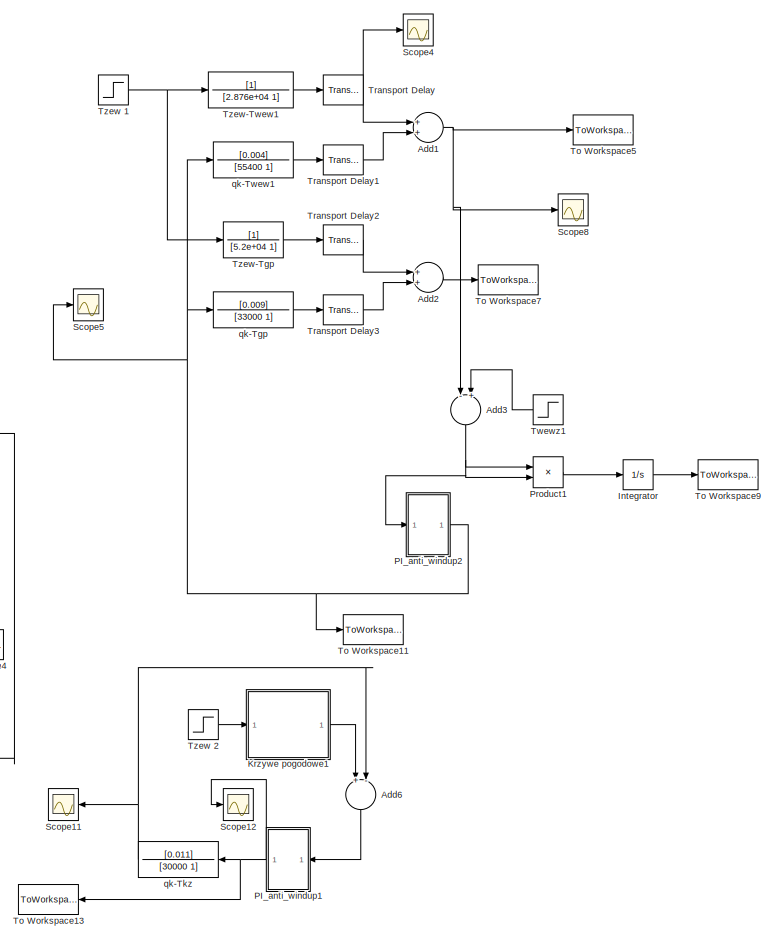
[diagram: root canvas - part 1/2, right side, full height]
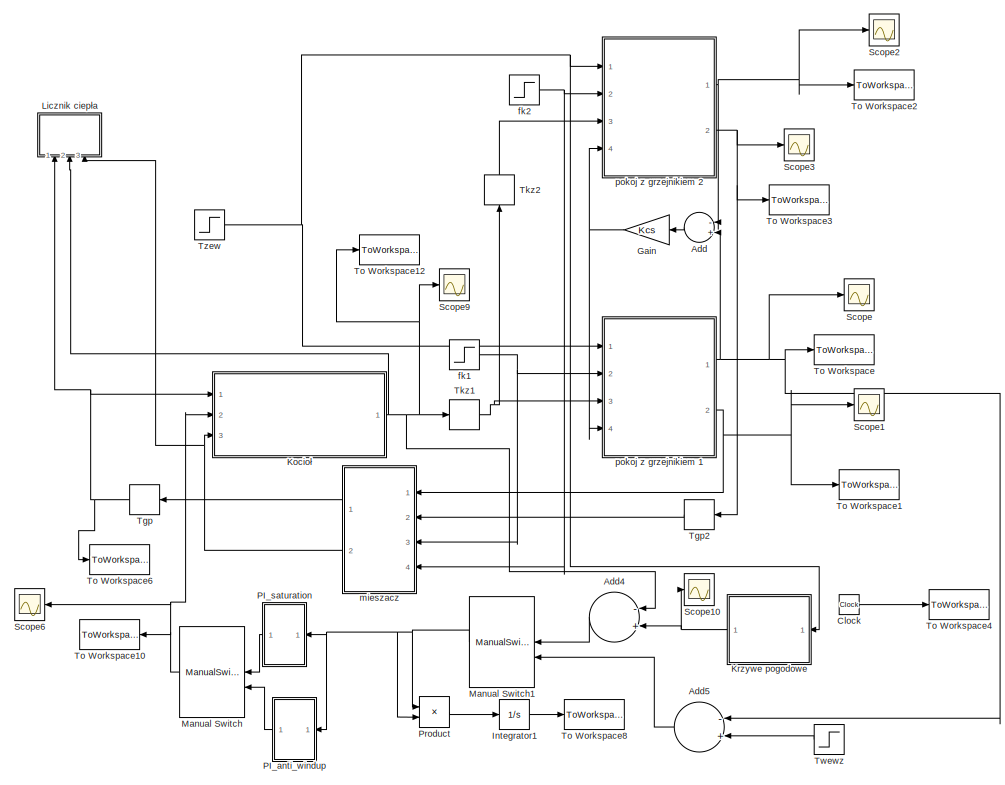
[diagram: root canvas - part 2/2, left side, full height]
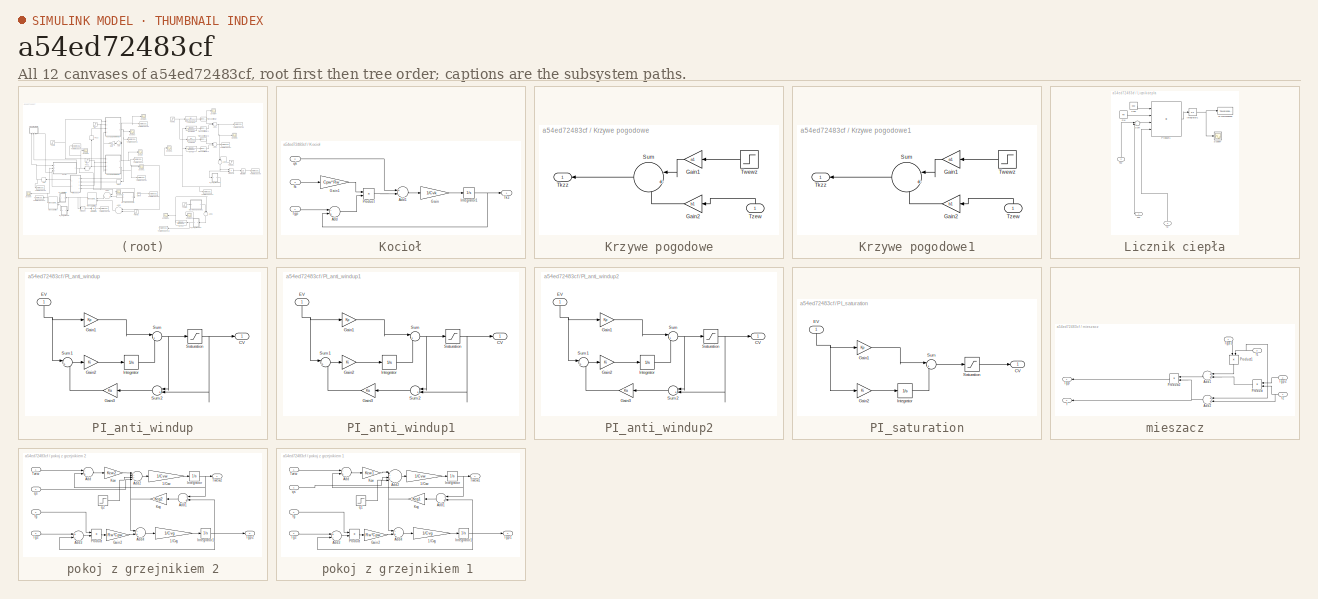
[diagram: thumbnail index - all 12 canvases of the model, root first then tree order]
MODEL slx_a54ed72483cf
KIND model
BLOCK [Sum] Add
  InputSameDT = off
  Inputs = -+
  OutDataTypeStr = Inherit: Inherit via internal rule
  Ports = [2, 1]
  SaturateOnIntegerOverflow = off
BLOCK [Sum] Add1
  InputSameDT = off
  OutDataTypeStr = Inherit: Inherit via internal rule
  Ports = [2, 1]
  SaturateOnIntegerOverflow = off
BLOCK [Sum] Add2
  InputSameDT = off
  OutDataTypeStr = Inherit: Inherit via internal rule
  Ports = [2, 1]
  SaturateOnIntegerOverflow = off
BLOCK [Sum] Add3
  InputSameDT = off
  Inputs = -+
  OutDataTypeStr = Inherit: Inherit via internal rule
  Ports = [2, 1]
  SaturateOnIntegerOverflow = off
BLOCK [Sum] Add4
  InputSameDT = off
  Inputs = -+
  OutDataTypeStr = Inherit: Inherit via internal rule
  Ports = [2, 1]
  SaturateOnIntegerOverflow = off
BLOCK [Sum] Add5
  InputSameDT = off
  Inputs = -+
  OutDataTypeStr = Inherit: Inherit via internal rule
  Ports = [2, 1]
  SaturateOnIntegerOverflow = off
BLOCK [Sum] Add6
  InputSameDT = off
  Inputs = +-
  OutDataTypeStr = Inherit: Inherit via internal rule
  Ports = [2, 1]
  SaturateOnIntegerOverflow = off
BLOCK [Clock] Clock
BLOCK [Gain] Gain
  Gain = Kcs
  OutDataTypeStr = Inherit: Inherit via internal rule
  ParamDataTypeStr = Inherit: Inherit via internal rule
  SaturateOnIntegerOverflow = off
BLOCK [Integrator] Integrator
  Ports = [1, 1]
BLOCK [Integrator] Integrator1
  Ports = [1, 1]
BLOCK [SubSystem] Kocioł
  Ports = [3, 1]
  RequestExecContextInheritance = off
BLOCK [Sum] Kocioł/Add
  InputSameDT = off
  Inputs = -+
  OutDataTypeStr = Inherit: Inherit via internal rule
  Ports = [2, 1]
  SaturateOnIntegerOverflow = off
BLOCK [Sum] Kocioł/Add1
  InputSameDT = off
  Inputs = +-
  OutDataTypeStr = Inherit: Inherit via internal rule
  Ports = [2, 1]
  SaturateOnIntegerOverflow = off
BLOCK [Gain] Kocioł/Gain
  Gain = 1/Cvk
  OutDataTypeStr = Inherit: Inherit via internal rule
  ParamDataTypeStr = Inherit: Inherit via internal rule
  SaturateOnIntegerOverflow = off
BLOCK [Gain] Kocioł/Gain1
  Gain = Cpw*Rw
  OutDataTypeStr = Inherit: Inherit via internal rule
  ParamDataTypeStr = Inherit: Inherit via internal rule
  SaturateOnIntegerOverflow = off
BLOCK [Integrator] Kocioł/Integrator1
  InitialCondition = Tkz0
  Ports = [1, 1]
BLOCK [Product] Kocioł/Product
  InputSameDT = off
  OutDataTypeStr = Inherit: Inherit via internal rule
  Ports = [2, 1]
  RndMeth = Floor
  SaturateOnIntegerOverflow = off
BLOCK [Inport] Kocioł/Tgp
  IconDisplay = Port number
BLOCK [Outport] Kocioł/Tkz
  IconDisplay = Port number
BLOCK [Inport] Kocioł/fk
  IconDisplay = Port number
  Port = 3
BLOCK [Inport] Kocioł/qk
  IconDisplay = Port number
  Port = 2
BLOCK [SubSystem] Krzywe pogodowe
  Ports = [1, 1]
  RequestExecContextInheritance = off
BLOCK [Gain] Krzywe pogodowe/Gain1
  Gain = a1
  OutDataTypeStr = Inherit: Inherit via internal rule
  ParamDataTypeStr = Inherit: Inherit via internal rule
  SaturateOnIntegerOverflow = off
BLOCK [Gain] Krzywe pogodowe/Gain2
  Gain = b1
  OutDataTypeStr = Inherit: Inherit via internal rule
  ParamDataTypeStr = Inherit: Inherit via internal rule
  SaturateOnIntegerOverflow = off
BLOCK [Sum] Krzywe pogodowe/Sum
  IconShape = round
  InputSameDT = off
  Inputs = |++
  OutDataTypeStr = Inherit: Inherit via internal rule
  Ports = [2, 1]
  SaturateOnIntegerOverflow = off
BLOCK [Outport] Krzywe pogodowe/Tkzz 
  IconDisplay = Port number
BLOCK [Step] Krzywe pogodowe/Twewz
  After = Twew10+(dTwew/a1)
  Before = Twew10
  SampleTime = 0
  Time = ts
BLOCK [Inport] Krzywe pogodowe/Tzew
  IconDisplay = Port number
BLOCK [SubSystem] Krzywe pogodowe1
  Ports = [1, 1]
  RequestExecContextInheritance = off
BLOCK [Gain] Krzywe pogodowe1/Gain1
  Gain = a1
  OutDataTypeStr = Inherit: Inherit via internal rule
  ParamDataTypeStr = Inherit: Inherit via internal rule
  SaturateOnIntegerOverflow = off
BLOCK [Gain] Krzywe pogodowe1/Gain2
  Gain = b1
  OutDataTypeStr = Inherit: Inherit via internal rule
  ParamDataTypeStr = Inherit: Inherit via internal rule
  SaturateOnIntegerOverflow = off
BLOCK [Sum] Krzywe pogodowe1/Sum
  IconShape = round
  InputSameDT = off
  Inputs = |++
  OutDataTypeStr = Inherit: Inherit via internal rule
  Ports = [2, 1]
  SaturateOnIntegerOverflow = off
BLOCK [Outport] Krzywe pogodowe1/Tkzz 
  IconDisplay = Port number
BLOCK [Step] Krzywe pogodowe1/Twewz
  After = 0+(dTwew/a1)
  SampleTime = 0
  Time = ts
BLOCK [Inport] Krzywe pogodowe1/Tzew
  IconDisplay = Port number
BLOCK [SubSystem] Licznik ciepła
  Ports = [3]
  RequestExecContextInheritance = off
BLOCK [Constant] Licznik ciepła/Cpw
  Value = Cpw
BLOCK [Integrator] Licznik ciepła/Integrator1
  Ports = [1, 1]
BLOCK [Product] Licznik ciepła/Product1
  InputSameDT = off
  Inputs = 4
  OutDataTypeStr = Inherit: Inherit via internal rule
  Ports = [4, 1]
  RndMeth = Floor
  SaturateOnIntegerOverflow = off
BLOCK [Constant] Licznik ciepła/Rw
  Value = Rw
BLOCK [Scope] Licznik ciepła/Scope7
  DataFormat = StructureWithTime
  Floating = off
  LimitDataPoints = off
  NumInputPorts = 1
  Ports = [1]
  SampleTime = 0
  SaveName = ScopeData9
  ShowLegends = off
  TimeRange = 20000000
  YMax = 21.5
  YMin = 19
BLOCK [Sum] Licznik ciepła/Sum
  IconShape = round
  InputSameDT = off
  Inputs = |+-
  OutDataTypeStr = Inherit: Inherit via internal rule
  Ports = [2, 1]
  SaturateOnIntegerOverflow = off
BLOCK [Inport] Licznik ciepła/Tkp
  IconDisplay = Port number
BLOCK [Inport] Licznik ciepła/Tkz 
  IconDisplay = Port number
  Port = 2
BLOCK [ToWorkspace] Licznik ciepła/To Workspace9
  MaxDataPoints = inf
  Ports = [1]
  SampleTime = -1
  VariableName = Heat
BLOCK [Inport] Licznik ciepła/fg
  IconDisplay = Port number
  Port = 3
BLOCK [ManualSwitch] Manual Switch
  CurrentSetting = 0
BLOCK [ManualSwitch] Manual Switch1
BLOCK [SubSystem] PI_anti_windup
  Ports = [1, 1]
  RequestExecContextInheritance = off
BLOCK [Outport] PI_anti_windup/CV
  IconDisplay = Port number
BLOCK [Inport] PI_anti_windup/EV
  IconDisplay = Port number
BLOCK [Gain] PI_anti_windup/Gain1
  Gain = Kp
  OutDataTypeStr = Inherit: Inherit via internal rule
  ParamDataTypeStr = Inherit: Inherit via internal rule
  SaturateOnIntegerOverflow = off
BLOCK [Gain] PI_anti_windup/Gain2
  Gain = Ki
  OutDataTypeStr = Inherit: Inherit via internal rule
  ParamDataTypeStr = Inherit: Inherit via internal rule
  SaturateOnIntegerOverflow = off
BLOCK [Gain] PI_anti_windup/Gain3
  Gain = Ka
  OutDataTypeStr = Inherit: Inherit via internal rule
  ParamDataTypeStr = Inherit: Inherit via internal rule
  SaturateOnIntegerOverflow = off
BLOCK [Integrator] PI_anti_windup/Integrator
  InitialCondition = WP
  Ports = [1, 1]
BLOCK [Saturate] PI_anti_windup/Saturation
  InputPortMap = u0
  Ports = [1, 1]
  UpperLimit = Lim
BLOCK [Sum] PI_anti_windup/Sum
  IconShape = round
  InputSameDT = off
  Inputs = |++
  OutDataTypeStr = Inherit: Inherit via internal rule
  Ports = [2, 1]
  SaturateOnIntegerOverflow = off
BLOCK [Sum] PI_anti_windup/Sum1
  IconShape = round
  InputSameDT = off
  Inputs = |+-
  OutDataTypeStr = Inherit: Inherit via internal rule
  Ports = [2, 1]
  SaturateOnIntegerOverflow = off
BLOCK [Sum] PI_anti_windup/Sum2
  IconShape = round
  InputSameDT = off
  Inputs = |+-
  OutDataTypeStr = Inherit: Inherit via internal rule
  Ports = [2, 1]
  SaturateOnIntegerOverflow = off
BLOCK [SubSystem] PI_anti_windup1
  Ports = [1, 1]
  RequestExecContextInheritance = off
BLOCK [Outport] PI_anti_windup1/CV
  IconDisplay = Port number
BLOCK [Inport] PI_anti_windup1/EV
  IconDisplay = Port number
BLOCK [Gain] PI_anti_windup1/Gain1
  Gain = Kp
  OutDataTypeStr = Inherit: Inherit via internal rule
  ParamDataTypeStr = Inherit: Inherit via internal rule
  SaturateOnIntegerOverflow = off
BLOCK [Gain] PI_anti_windup1/Gain2
  Gain = Ki
  OutDataTypeStr = Inherit: Inherit via internal rule
  ParamDataTypeStr = Inherit: Inherit via internal rule
  SaturateOnIntegerOverflow = off
BLOCK [Gain] PI_anti_windup1/Gain3
  Gain = Ka
  OutDataTypeStr = Inherit: Inherit via internal rule
  ParamDataTypeStr = Inherit: Inherit via internal rule
  SaturateOnIntegerOverflow = off
BLOCK [Integrator] PI_anti_windup1/Integrator
  InitialCondition = WP
  Ports = [1, 1]
BLOCK [Saturate] PI_anti_windup1/Saturation
  InputPortMap = u0
  Ports = [1, 1]
  UpperLimit = Lim
BLOCK [Sum] PI_anti_windup1/Sum
  IconShape = round
  InputSameDT = off
  Inputs = |++
  OutDataTypeStr = Inherit: Inherit via internal rule
  Ports = [2, 1]
  SaturateOnIntegerOverflow = off
BLOCK [Sum] PI_anti_windup1/Sum1
  IconShape = round
  InputSameDT = off
  Inputs = |+-
  OutDataTypeStr = Inherit: Inherit via internal rule
  Ports = [2, 1]
  SaturateOnIntegerOverflow = off
BLOCK [Sum] PI_anti_windup1/Sum2
  IconShape = round
  InputSameDT = off
  Inputs = |+-
  OutDataTypeStr = Inherit: Inherit via internal rule
  Ports = [2, 1]
  SaturateOnIntegerOverflow = off
BLOCK [SubSystem] PI_anti_windup2
  Ports = [1, 1]
  RequestExecContextInheritance = off
BLOCK [Outport] PI_anti_windup2/CV
  IconDisplay = Port number
BLOCK [Inport] PI_anti_windup2/EV
  IconDisplay = Port number
BLOCK [Gain] PI_anti_windup2/Gain1
  Gain = Kp
  OutDataTypeStr = Inherit: Inherit via internal rule
  ParamDataTypeStr = Inherit: Inherit via internal rule
  SaturateOnIntegerOverflow = off
BLOCK [Gain] PI_anti_windup2/Gain2
  Gain = Ki
  OutDataTypeStr = Inherit: Inherit via internal rule
  ParamDataTypeStr = Inherit: Inherit via internal rule
  SaturateOnIntegerOverflow = off
BLOCK [Gain] PI_anti_windup2/Gain3
  Gain = Ka
  OutDataTypeStr = Inherit: Inherit via internal rule
  ParamDataTypeStr = Inherit: Inherit via internal rule
  SaturateOnIntegerOverflow = off
BLOCK [Integrator] PI_anti_windup2/Integrator
  InitialCondition = WP
  Ports = [1, 1]
BLOCK [Saturate] PI_anti_windup2/Saturation
  InputPortMap = u0
  Ports = [1, 1]
  UpperLimit = Lim
BLOCK [Sum] PI_anti_windup2/Sum
  IconShape = round
  InputSameDT = off
  Inputs = |++
  OutDataTypeStr = Inherit: Inherit via internal rule
  Ports = [2, 1]
  SaturateOnIntegerOverflow = off
BLOCK [Sum] PI_anti_windup2/Sum1
  IconShape = round
  InputSameDT = off
  Inputs = |+-
  OutDataTypeStr = Inherit: Inherit via internal rule
  Ports = [2, 1]
  SaturateOnIntegerOverflow = off
BLOCK [Sum] PI_anti_windup2/Sum2
  IconShape = round
  InputSameDT = off
  Inputs = |+-
  OutDataTypeStr = Inherit: Inherit via internal rule
  Ports = [2, 1]
  SaturateOnIntegerOverflow = off
BLOCK [SubSystem] PI_saturation
  Ports = [1, 1]
  RequestExecContextInheritance = off
BLOCK [Outport] PI_saturation/CV
  IconDisplay = Port number
BLOCK [Inport] PI_saturation/EV
  IconDisplay = Port number
BLOCK [Gain] PI_saturation/Gain1
  Gain = Kp
  OutDataTypeStr = Inherit: Inherit via internal rule
  ParamDataTypeStr = Inherit: Inherit via internal rule
  SaturateOnIntegerOverflow = off
BLOCK [Gain] PI_saturation/Gain2
  Gain = Ki
  OutDataTypeStr = Inherit: Inherit via internal rule
  ParamDataTypeStr = Inherit: Inherit via internal rule
  SaturateOnIntegerOverflow = off
BLOCK [Integrator] PI_saturation/Integrator
  InitialCondition = WP
  Ports = [1, 1]
BLOCK [Saturate] PI_saturation/Saturation
  InputPortMap = u0
  Ports = [1, 1]
  UpperLimit = Lim
BLOCK [Sum] PI_saturation/Sum
  IconShape = round
  InputSameDT = off
  Inputs = |++
  OutDataTypeStr = Inherit: Inherit via internal rule
  Ports = [2, 1]
  SaturateOnIntegerOverflow = off
BLOCK [Product] Product
  InputSameDT = off
  OutDataTypeStr = Inherit: Inherit via internal rule
  Ports = [2, 1]
  RndMeth = Floor
  SaturateOnIntegerOverflow = off
BLOCK [Product] Product1
  InputSameDT = off
  OutDataTypeStr = Inherit: Inherit via internal rule
  Ports = [2, 1]
  RndMeth = Floor
  SaturateOnIntegerOverflow = off
BLOCK [Scope] Scope
  DataFormat = StructureWithTime
  Floating = off
  LimitDataPoints = off
  NumInputPorts = 1
  Ports = [1]
  SampleTime = 0
  ShowLegends = off
  TimeRange = 400000
  YMax = 20
  YMin = 17.5
BLOCK [Scope] Scope1
  DataFormat = StructureWithTime
  Floating = off
  LimitDataPoints = off
  NumInputPorts = 1
  Ports = [1]
  SampleTime = 0
  SaveName = ScopeData1
  ShowLegends = off
BLOCK [Scope] Scope10
  DataFormat = StructureWithTime
  Floating = off
  LimitDataPoints = off
  NumInputPorts = 1
  Ports = [1]
  SampleTime = 0
  SaveName = ScopeData11
  ShowLegends = off
  TimeRange = 400000
  YMax = 20
  YMin = 17.5
BLOCK [Scope] Scope11
  DataFormat = StructureWithTime
  Floating = off
  LimitDataPoints = off
  NumInputPorts = 1
  Ports = [1]
  SampleTime = 0
  SaveName = ScopeData12
  ShowLegends = off
  TimeRange = 400000
  YMax = 4.00075
  YMin = 4.00025
BLOCK [Scope] Scope12
  DataFormat = StructureWithTime
  Floating = off
  LimitDataPoints = off
  NumInputPorts = 1
  Ports = [1]
  SampleTime = 0
  SaveName = ScopeData13
  ShowLegends = off
  TimeRange = 400000
  YMax = 4.00075
  YMin = 4.00025
BLOCK [Scope] Scope2
  DataFormat = StructureWithTime
  Floating = off
  LimitDataPoints = off
  NumInputPorts = 1
  Ports = [1]
  SampleTime = 0
  SaveName = ScopeData2
  ShowLegends = off
  TimeRange = 20000000
  YMax = 21.5
  YMin = 19
BLOCK [Scope] Scope3
  DataFormat = StructureWithTime
  Floating = off
  LimitDataPoints = off
  NumInputPorts = 1
  Ports = [1]
  SampleTime = 0
  SaveName = ScopeData3
  ShowLegends = off
BLOCK [Scope] Scope4
  DataFormat = StructureWithTime
  Floating = off
  LimitDataPoints = off
  NumInputPorts = 1
  Ports = [1]
  SampleTime = 0
  SaveName = ScopeData4
  ShowLegends = off
  TimeRange = 20000000
  YMax = 21.5
  YMin = 19
BLOCK [Scope] Scope5
  DataFormat = StructureWithTime
  Floating = off
  LimitDataPoints = off
  NumInputPorts = 1
  Ports = [1]
  SampleTime = 0
  SaveName = ScopeData5
  ShowLegends = off
  TimeRange = 20000000
  YMax = 21.5
  YMin = 19
BLOCK [Scope] Scope6
  DataFormat = StructureWithTime
  Floating = off
  LimitDataPoints = off
  NumInputPorts = 1
  Ports = [1]
  SampleTime = 0
  SaveName = ScopeData6
  ShowLegends = off
  TimeRange = 20000000
  YMax = 21.5
  YMin = 19
BLOCK [Scope] Scope8
  DataFormat = StructureWithTime
  Floating = off
  LimitDataPoints = off
  NumInputPorts = 1
  Ports = [1]
  SampleTime = 0
  SaveName = ScopeData8
  ShowLegends = off
  TimeRange = 400000
  YMax = 4.00075
  YMin = 4.00025
BLOCK [Scope] Scope9
  DataFormat = StructureWithTime
  Floating = off
  LimitDataPoints = off
  NumInputPorts = 1
  Ports = [1]
  SampleTime = 0
  SaveName = ScopeData10
  ShowLegends = off
  TimeRange = 400000
  YMax = 20
  YMin = 17.5
BLOCK [TransportDelay] Tgp
  DelayTime = 300
  InitialOutput = (Tgp10*fk10+Tgp20*fk20)/(fk10+fk20)
  Ports = [1, 1]
BLOCK [TransportDelay] Tgp2
  DelayTime = 300
  InitialOutput = Tgp20
  Ports = [1, 1]
BLOCK [TransportDelay] Tkz1
  DelayTime = 300
  InitialOutput = Tkz0
  Ports = [1, 1]
BLOCK [TransportDelay] Tkz2
  DelayTime = 300
  InitialOutput = Tkz0
  Ports = [1, 1]
BLOCK [ToWorkspace] To Workspace
  MaxDataPoints = inf
  Ports = [1]
  SampleTime = -1
  VariableName = Twew1
BLOCK [ToWorkspace] To Workspace1
  MaxDataPoints = inf
  Ports = [1]
  SampleTime = -1
  VariableName = Tgp1
BLOCK [ToWorkspace] To Workspace10
  FixptAsFi = on
  MaxDataPoints = inf
  Ports = [1]
  SampleTime = -1
  Save2DSignal = 3-D array (concatenate along third dimension)
  VariableName = qko
BLOCK [ToWorkspace] To Workspace11
  FixptAsFi = on
  MaxDataPoints = inf
  Ports = [1]
  SampleTime = -1
  Save2DSignal = 3-D array (concatenate along third dimension)
  VariableName = qkm
BLOCK [ToWorkspace] To Workspace12
  MaxDataPoints = inf
  Ports = [1]
  SampleTime = -1
  VariableName = Tkz
BLOCK [ToWorkspace] To Workspace13
  FixptAsFi = on
  MaxDataPoints = inf
  Ports = [1]
  SampleTime = -1
  Save2DSignal = 3-D array (concatenate along third dimension)
  VariableName = qkmp
BLOCK [ToWorkspace] To Workspace2
  MaxDataPoints = inf
  Ports = [1]
  SampleTime = -1
  VariableName = Twew2
BLOCK [ToWorkspace] To Workspace3
  MaxDataPoints = inf
  Ports = [1]
  SampleTime = -1
  VariableName = Tgp2
BLOCK [ToWorkspace] To Workspace4
  MaxDataPoints = inf
  Ports = [1]
  SampleTime = -1
  VariableName = t
BLOCK [ToWorkspace] To Workspace5
  FixptAsFi = on
  MaxDataPoints = inf
  Ports = [1]
  SampleTime = -1
  Save2DSignal = 3-D array (concatenate along third dimension)
  VariableName = Twewm
BLOCK [ToWorkspace] To Workspace6
  MaxDataPoints = inf
  Ports = [1]
  SampleTime = -1
  VariableName = Tgp
BLOCK [ToWorkspace] To Workspace7
  FixptAsFi = on
  MaxDataPoints = inf
  Ports = [1]
  SampleTime = -1
  Save2DSignal = 3-D array (concatenate along third dimension)
  VariableName = Tgpm
BLOCK [ToWorkspace] To Workspace8
  FixptAsFi = on
  MaxDataPoints = inf
  Ports = [1]
  SampleTime = -1
  Save2DSignal = 3-D array (concatenate along third dimension)
  VariableName = ISE
BLOCK [ToWorkspace] To Workspace9
  FixptAsFi = on
  MaxDataPoints = inf
  Ports = [1]
  SampleTime = -1
  Save2DSignal = 3-D array (concatenate along third dimension)
  VariableName = ISEm
BLOCK [TransportDelay] Transport Delay
  DelayTime = 0
  Ports = [1, 1]
BLOCK [TransportDelay] Transport Delay1
  DelayTime = 3800
  Ports = [1, 1]
BLOCK [TransportDelay] Transport Delay2
  DelayTime = 3400
  Ports = [1, 1]
BLOCK [TransportDelay] Transport Delay3
  DelayTime = 1000
  Ports = [1, 1]
BLOCK [Step] Twewz
  After = Twew10+dTwew
  Before = Twew10
  SampleTime = 0
  Time = ts
BLOCK [Step] Twewz1
  After = dTwew
  SampleTime = 0
  Time = ts
BLOCK [Step] Tzew 
  After = Tzew0+dTzew
  Before = Tzew0
  SampleTime = 0
  Time = ts
BLOCK [Step] Tzew 1
  After = 0+dTzew
  SampleTime = 0
  Time = ts
BLOCK [Step] Tzew 2
  After = 0+dTzew
  SampleTime = 0
  Time = ts
BLOCK [TransferFcn] Tzew-Tgp
  Denominator = [5.2e+04 1]
BLOCK [TransferFcn] Tzew-Twew1
  Denominator = [2.876e+04 1]
BLOCK [Step] fk1
  After = fk10+dfk1
  Before = fk10
  SampleTime = 0
  Time = ts
BLOCK [Step] fk2
  After = fk20+dfk2
  Before = fk20
  SampleTime = 0
  Time = ts
BLOCK [SubSystem] mieszacz
  Ports = [4, 2]
  RequestExecContextInheritance = off
BLOCK [Sum] mieszacz/Add1
  InputSameDT = off
  OutDataTypeStr = Inherit: Inherit via internal rule
  Ports = [2, 1]
  SaturateOnIntegerOverflow = off
BLOCK [Sum] mieszacz/Add2
  InputSameDT = off
  OutDataTypeStr = Inherit: Inherit via internal rule
  Ports = [2, 1]
  SaturateOnIntegerOverflow = off
BLOCK [Product] mieszacz/Product
  InputSameDT = off
  OutDataTypeStr = Inherit: Inherit via internal rule
  Ports = [2, 1]
  RndMeth = Floor
  SaturateOnIntegerOverflow = off
BLOCK [Product] mieszacz/Product1
  InputSameDT = off
  OutDataTypeStr = Inherit: Inherit via internal rule
  Ports = [2, 1]
  RndMeth = Floor
  SaturateOnIntegerOverflow = off
BLOCK [Product] mieszacz/Product2
  InputSameDT = off
  Inputs = */
  OutDataTypeStr = Inherit: Inherit via internal rule
  Ports = [2, 1]
  RndMeth = Floor
  SaturateOnIntegerOverflow = off
BLOCK [Outport] mieszacz/Tgp
  IconDisplay = Port number
BLOCK [Inport] mieszacz/Tgp1
  IconDisplay = Port number
BLOCK [Inport] mieszacz/Tgp2
  IconDisplay = Port number
  Port = 2
BLOCK [Outport] mieszacz/f
  IconDisplay = Port number
  Port = 2
BLOCK [Inport] mieszacz/f1
  IconDisplay = Port number
  Port = 3
BLOCK [Inport] mieszacz/f2
  IconDisplay = Port number
  Port = 4
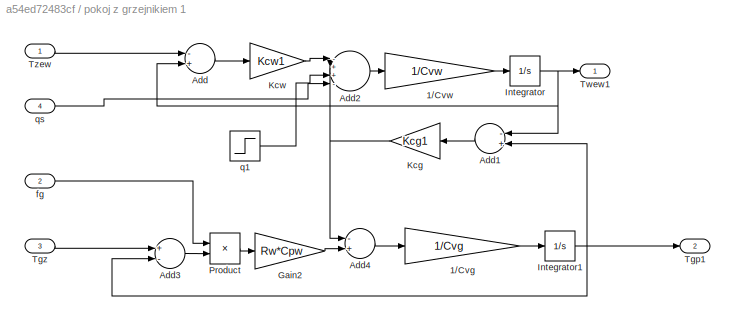
BLOCK [SubSystem] pokoj z grzejnikiem 1 
  Ports = [4, 2]
  RequestExecContextInheritance = off
BLOCK [Gain] pokoj z grzejnikiem 1 /1//Cvg
  Gain = 1/Cvg
  OutDataTypeStr = Inherit: Inherit via internal rule
  ParamDataTypeStr = Inherit: Inherit via internal rule
  SaturateOnIntegerOverflow = off
BLOCK [Gain] pokoj z grzejnikiem 1 /1//Cvw
  Gain = 1/Cvw
  OutDataTypeStr = Inherit: Inherit via internal rule
  ParamDataTypeStr = Inherit: Inherit via internal rule
  SaturateOnIntegerOverflow = off
BLOCK [Sum] pokoj z grzejnikiem 1 /Add
  InputSameDT = off
  Inputs = -+
  OutDataTypeStr = Inherit: Inherit via internal rule
  Ports = [2, 1]
  SaturateOnIntegerOverflow = off
BLOCK [Sum] pokoj z grzejnikiem 1 /Add1
  InputSameDT = off
  Inputs = -+
  OutDataTypeStr = Inherit: Inherit via internal rule
  Ports = [2, 1]
  SaturateOnIntegerOverflow = off
BLOCK [Sum] pokoj z grzejnikiem 1 /Add2
  InputSameDT = off
  Inputs = -++-
  OutDataTypeStr = Inherit: Inherit via internal rule
  Ports = [4, 1]
  SaturateOnIntegerOverflow = off
BLOCK [Sum] pokoj z grzejnikiem 1 /Add3
  InputSameDT = off
  Inputs = +-
  OutDataTypeStr = Inherit: Inherit via internal rule
  Ports = [2, 1]
  SaturateOnIntegerOverflow = off
BLOCK [Sum] pokoj z grzejnikiem 1 /Add4
  InputSameDT = off
  Inputs = -+
  OutDataTypeStr = Inherit: Inherit via internal rule
  Ports = [2, 1]
  SaturateOnIntegerOverflow = off
BLOCK [Gain] pokoj z grzejnikiem 1 /Gain2
  Gain = Rw*Cpw
  OutDataTypeStr = Inherit: Inherit via internal rule
  ParamDataTypeStr = Inherit: Inherit via internal rule
  SaturateOnIntegerOverflow = off
BLOCK [Integrator] pokoj z grzejnikiem 1 /Integrator
  InitialCondition = Twew10
  Ports = [1, 1]
BLOCK [Integrator] pokoj z grzejnikiem 1 /Integrator1
  InitialCondition = Tgp10
  Ports = [1, 1]
BLOCK [Gain] pokoj z grzejnikiem 1 /Kcg 
  Gain = Kcg1
  OutDataTypeStr = Inherit: Inherit via internal rule
  ParamDataTypeStr = Inherit: Inherit via internal rule
  SaturateOnIntegerOverflow = off
BLOCK [Gain] pokoj z grzejnikiem 1 /Kcw
  Gain = Kcw1
  OutDataTypeStr = Inherit: Inherit via internal rule
  ParamDataTypeStr = Inherit: Inherit via internal rule
  SaturateOnIntegerOverflow = off
BLOCK [Product] pokoj z grzejnikiem 1 /Product
  InputSameDT = off
  OutDataTypeStr = Inherit: Inherit via internal rule
  Ports = [2, 1]
  RndMeth = Floor
  SaturateOnIntegerOverflow = off
BLOCK [Outport] pokoj z grzejnikiem 1 /Tgp1
  IconDisplay = Port number
  Port = 2
BLOCK [Inport] pokoj z grzejnikiem 1 /Tgz
  IconDisplay = Port number
  Port = 3
BLOCK [Outport] pokoj z grzejnikiem 1 /Twew1
  IconDisplay = Port number
BLOCK [Inport] pokoj z grzejnikiem 1 /Tzew
  IconDisplay = Port number
BLOCK [Inport] pokoj z grzejnikiem 1 /fg
  IconDisplay = Port number
  Port = 2
BLOCK [Step] pokoj z grzejnikiem 1 /q1
  After = q1
  SampleTime = 0
  Time = ts
BLOCK [Inport] pokoj z grzejnikiem 1 /qs
  IconDisplay = Port number
  Port = 4
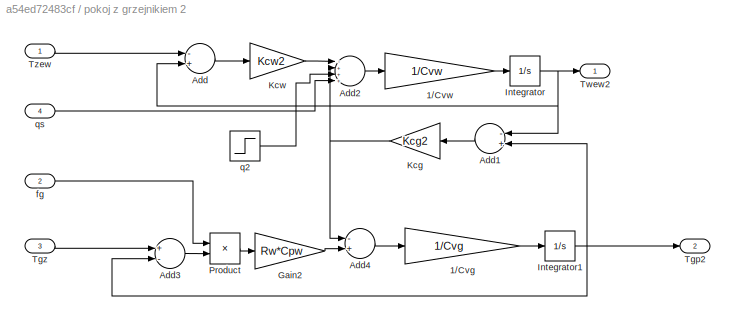
BLOCK [SubSystem] pokoj z grzejnikiem 2
  Ports = [4, 2]
  RequestExecContextInheritance = off
BLOCK [Gain] pokoj z grzejnikiem 2/1//Cvg
  Gain = 1/Cvg
  OutDataTypeStr = Inherit: Inherit via internal rule
  ParamDataTypeStr = Inherit: Inherit via internal rule
  SaturateOnIntegerOverflow = off
BLOCK [Gain] pokoj z grzejnikiem 2/1//Cvw
  Gain = 1/Cvw
  OutDataTypeStr = Inherit: Inherit via internal rule
  ParamDataTypeStr = Inherit: Inherit via internal rule
  SaturateOnIntegerOverflow = off
BLOCK [Sum] pokoj z grzejnikiem 2/Add
  InputSameDT = off
  Inputs = -+
  OutDataTypeStr = Inherit: Inherit via internal rule
  Ports = [2, 1]
  SaturateOnIntegerOverflow = off
BLOCK [Sum] pokoj z grzejnikiem 2/Add1
  InputSameDT = off
  Inputs = -+
  OutDataTypeStr = Inherit: Inherit via internal rule
  Ports = [2, 1]
  SaturateOnIntegerOverflow = off
BLOCK [Sum] pokoj z grzejnikiem 2/Add2
  InputSameDT = off
  Inputs = -+++
  OutDataTypeStr = Inherit: Inherit via internal rule
  Ports = [4, 1]
  SaturateOnIntegerOverflow = off
BLOCK [Sum] pokoj z grzejnikiem 2/Add3
  InputSameDT = off
  Inputs = +-
  OutDataTypeStr = Inherit: Inherit via internal rule
  Ports = [2, 1]
  SaturateOnIntegerOverflow = off
BLOCK [Sum] pokoj z grzejnikiem 2/Add4
  InputSameDT = off
  Inputs = -+
  OutDataTypeStr = Inherit: Inherit via internal rule
  Ports = [2, 1]
  SaturateOnIntegerOverflow = off
BLOCK [Gain] pokoj z grzejnikiem 2/Gain2
  Gain = Rw*Cpw
  OutDataTypeStr = Inherit: Inherit via internal rule
  ParamDataTypeStr = Inherit: Inherit via internal rule
  SaturateOnIntegerOverflow = off
BLOCK [Integrator] pokoj z grzejnikiem 2/Integrator
  InitialCondition = Twew20
  Ports = [1, 1]
BLOCK [Integrator] pokoj z grzejnikiem 2/Integrator1
  InitialCondition = Tgp20
  Ports = [1, 1]
BLOCK [Gain] pokoj z grzejnikiem 2/Kcg 
  Gain = Kcg2
  OutDataTypeStr = Inherit: Inherit via internal rule
  ParamDataTypeStr = Inherit: Inherit via internal rule
  SaturateOnIntegerOverflow = off
BLOCK [Gain] pokoj z grzejnikiem 2/Kcw
  Gain = Kcw2
  OutDataTypeStr = Inherit: Inherit via internal rule
  ParamDataTypeStr = Inherit: Inherit via internal rule
  SaturateOnIntegerOverflow = off
BLOCK [Product] pokoj z grzejnikiem 2/Product
  InputSameDT = off
  OutDataTypeStr = Inherit: Inherit via internal rule
  Ports = [2, 1]
  RndMeth = Floor
  SaturateOnIntegerOverflow = off
BLOCK [Outport] pokoj z grzejnikiem 2/Tgp2
  IconDisplay = Port number
  Port = 2
BLOCK [Inport] pokoj z grzejnikiem 2/Tgz
  IconDisplay = Port number
  Port = 3
BLOCK [Outport] pokoj z grzejnikiem 2/Twew2
  IconDisplay = Port number
BLOCK [Inport] pokoj z grzejnikiem 2/Tzew
  IconDisplay = Port number
BLOCK [Inport] pokoj z grzejnikiem 2/fg
  IconDisplay = Port number
  Port = 2
BLOCK [Step] pokoj z grzejnikiem 2/q2
  After = q2
  SampleTime = 0
  Time = ts
BLOCK [Inport] pokoj z grzejnikiem 2/qs
  IconDisplay = Port number
  Port = 4
BLOCK [TransferFcn] qk-Tgp
  Denominator = [33000 1]
  Numerator = [0.009]
BLOCK [TransferFcn] qk-Tkz
  Denominator = [30000 1]
  Numerator = [0.011]
BLOCK [TransferFcn] qk-Twew1
  Denominator = [55400 1]
  Numerator = [0.004]
NET Add1:1 -> Add3:1, Scope8:1, To Workspace5:1
LINE Add2:1 -> To Workspace7:1
NET Add3:1 -> PI_anti_windup2:1, Product1:1, Product1:2
LINE Add4:1 -> Manual Switch1:1
LINE Add5:1 -> Manual Switch1:2
LINE Add6:1 -> PI_anti_windup1:1
LINE Add:1 -> Gain:1
LINE Clock:1 -> To Workspace4:1
NET Gain:1 -> pokoj z grzejnikiem 1 :4, pokoj z grzejnikiem 2:4
LINE Integrator1:1 -> To Workspace8:1
LINE Integrator:1 -> To Workspace9:1
LINE Kocioł/Add1:1 -> Kocioł/Gain:1
LINE Kocioł/Add:1 -> Kocioł/Product:2
LINE Kocioł/Gain1:1 -> Kocioł/Product:1
LINE Kocioł/Gain:1 -> Kocioł/Integrator1:1
NET Kocioł/Integrator1:1 -> Kocioł/Add:2, Kocioł/Tkz:1
LINE Kocioł/Product:1 -> Kocioł/Add1:2
LINE Kocioł/Tgp:1 -> Kocioł/Add:1
LINE Kocioł/fk:1 -> Kocioł/Gain1:1
LINE Kocioł/qk:1 -> Kocioł/Add1:1
NET Kocioł:1 -> Add4:1, Licznik ciepła:2, Scope9:1, Tkz1:1, To Workspace12:1
LINE Krzywe pogodowe/Gain1:1 -> Krzywe pogodowe/Sum:1
LINE Krzywe pogodowe/Gain2:1 -> Krzywe pogodowe/Sum:2
LINE Krzywe pogodowe/Sum:1 -> Krzywe pogodowe/Tkzz :1
LINE Krzywe pogodowe/Twewz:1 -> Krzywe pogodowe/Gain1:1
LINE Krzywe pogodowe/Tzew:1 -> Krzywe pogodowe/Gain2:1
LINE Krzywe pogodowe1/Gain1:1 -> Krzywe pogodowe1/Sum:1
LINE Krzywe pogodowe1/Gain2:1 -> Krzywe pogodowe1/Sum:2
LINE Krzywe pogodowe1/Sum:1 -> Krzywe pogodowe1/Tkzz :1
LINE Krzywe pogodowe1/Twewz:1 -> Krzywe pogodowe1/Gain1:1
LINE Krzywe pogodowe1/Tzew:1 -> Krzywe pogodowe1/Gain2:1
LINE Krzywe pogodowe1:1 -> Add6:1
NET Krzywe pogodowe:1 -> Add4:2, Scope10:1
LINE Licznik ciepła/Cpw:1 -> Licznik ciepła/Product1:1
NET Licznik ciepła/Integrator1:1 -> Licznik ciepła/Scope7:1, Licznik ciepła/To Workspace9:1
LINE Licznik ciepła/Product1:1 -> Licznik ciepła/Integrator1:1
LINE Licznik ciepła/Rw:1 -> Licznik ciepła/Product1:2
LINE Licznik ciepła/Sum:1 -> Licznik ciepła/Product1:3
LINE Licznik ciepła/Tkp:1 -> Licznik ciepła/Sum:2
LINE Licznik ciepła/Tkz :1 -> Licznik ciepła/Sum:1
LINE Licznik ciepła/fg:1 -> Licznik ciepła/Product1:4
NET Manual Switch1:1 -> PI_anti_windup:1, PI_saturation:1, Product:1, Product:2
NET Manual Switch:1 -> Kocioł:2, Scope6:1, To Workspace10:1
NET PI_anti_windup/EV:1 -> PI_anti_windup/Gain1:1, PI_anti_windup/Sum1:1
LINE PI_anti_windup/Gain1:1 -> PI_anti_windup/Sum:1
LINE PI_anti_windup/Gain2:1 -> PI_anti_windup/Integrator:1
LINE PI_anti_windup/Gain3:1 -> PI_anti_windup/Sum1:2
LINE PI_anti_windup/Integrator:1 -> PI_anti_windup/Sum:2
NET PI_anti_windup/Saturation:1 -> PI_anti_windup/CV:1, PI_anti_windup/Sum2:2
LINE PI_anti_windup/Sum1:1 -> PI_anti_windup/Gain2:1
LINE PI_anti_windup/Sum2:1 -> PI_anti_windup/Gain3:1
NET PI_anti_windup/Sum:1 -> PI_anti_windup/Saturation:1, PI_anti_windup/Sum2:1
NET PI_anti_windup1/EV:1 -> PI_anti_windup1/Gain1:1, PI_anti_windup1/Sum1:1
LINE PI_anti_windup1/Gain1:1 -> PI_anti_windup1/Sum:1
LINE PI_anti_windup1/Gain2:1 -> PI_anti_windup1/Integrator:1
LINE PI_anti_windup1/Gain3:1 -> PI_anti_windup1/Sum1:2
LINE PI_anti_windup1/Integrator:1 -> PI_anti_windup1/Sum:2
NET PI_anti_windup1/Saturation:1 -> PI_anti_windup1/CV:1, PI_anti_windup1/Sum2:2
LINE PI_anti_windup1/Sum1:1 -> PI_anti_windup1/Gain2:1
LINE PI_anti_windup1/Sum2:1 -> PI_anti_windup1/Gain3:1
NET PI_anti_windup1/Sum:1 -> PI_anti_windup1/Saturation:1, PI_anti_windup1/Sum2:1
NET PI_anti_windup1:1 -> Scope12:1, To Workspace13:1, qk-Tkz:1
NET PI_anti_windup2/EV:1 -> PI_anti_windup2/Gain1:1, PI_anti_windup2/Sum1:1
LINE PI_anti_windup2/Gain1:1 -> PI_anti_windup2/Sum:1
LINE PI_anti_windup2/Gain2:1 -> PI_anti_windup2/Integrator:1
LINE PI_anti_windup2/Gain3:1 -> PI_anti_windup2/Sum1:2
LINE PI_anti_windup2/Integrator:1 -> PI_anti_windup2/Sum:2
NET PI_anti_windup2/Saturation:1 -> PI_anti_windup2/CV:1, PI_anti_windup2/Sum2:2
LINE PI_anti_windup2/Sum1:1 -> PI_anti_windup2/Gain2:1
LINE PI_anti_windup2/Sum2:1 -> PI_anti_windup2/Gain3:1
NET PI_anti_windup2/Sum:1 -> PI_anti_windup2/Saturation:1, PI_anti_windup2/Sum2:1
NET PI_anti_windup2:1 -> Scope5:1, To Workspace11:1, qk-Tgp:1, qk-Twew1:1
LINE PI_anti_windup:1 -> Manual Switch:2
NET PI_saturation/EV:1 -> PI_saturation/Gain1:1, PI_saturation/Gain2:1
LINE PI_saturation/Gain1:1 -> PI_saturation/Sum:1
LINE PI_saturation/Gain2:1 -> PI_saturation/Integrator:1
LINE PI_saturation/Integrator:1 -> PI_saturation/Sum:2
LINE PI_saturation/Saturation:1 -> PI_saturation/CV:1
LINE PI_saturation/Sum:1 -> PI_saturation/Saturation:1
LINE PI_saturation:1 -> Manual Switch:1
LINE Product1:1 -> Integrator:1
LINE Product:1 -> Integrator1:1
LINE Tgp2:1 -> mieszacz:2
NET Tgp:1 -> Kocioł:1, Licznik ciepła:1, To Workspace6:1
NET Tkz1:1 -> Tkz2:1, pokoj z grzejnikiem 1 :3
LINE Tkz2:1 -> pokoj z grzejnikiem 2:3
LINE Transport Delay1:1 -> Add1:2
LINE Transport Delay2:1 -> Add2:1
LINE Transport Delay3:1 -> Add2:2
NET Transport Delay:1 -> Add1:1, Scope4:1
LINE Twewz1:1 -> Add3:2
LINE Twewz:1 -> Add5:2
NET Tzew 1:1 -> Tzew-Tgp:1, Tzew-Twew1:1
LINE Tzew 2:1 -> Krzywe pogodowe1:1
NET Tzew :1 -> Krzywe pogodowe:1, pokoj z grzejnikiem 1 :1, pokoj z grzejnikiem 2:1
LINE Tzew-Tgp:1 -> Transport Delay2:1
LINE Tzew-Twew1:1 -> Transport Delay:1
NET fk1:1 -> mieszacz:3, pokoj z grzejnikiem 1 :2
NET fk2:1 -> mieszacz:4, pokoj z grzejnikiem 2:2
LINE mieszacz/Add1:1 -> mieszacz/Product2:1
NET mieszacz/Add2:1 -> mieszacz/Product2:2, mieszacz/f:1
LINE mieszacz/Product1:1 -> mieszacz/Add1:1
LINE mieszacz/Product2:1 -> mieszacz/Tgp:1
LINE mieszacz/Product:1 -> mieszacz/Add1:2
LINE mieszacz/Tgp1:1 -> mieszacz/Product1:1
LINE mieszacz/Tgp2:1 -> mieszacz/Product:1
NET mieszacz/f1:1 -> mieszacz/Add2:1, mieszacz/Product1:2
NET mieszacz/f2:1 -> mieszacz/Add2:2, mieszacz/Product:2
LINE mieszacz:1 -> Tgp:1
NET mieszacz:2 -> Kocioł:3, Licznik ciepła:3
LINE pokoj z grzejnikiem 1 /1//Cvg:1 -> pokoj z grzejnikiem 1 /Integrator1:1
LINE pokoj z grzejnikiem 1 /1//Cvw:1 -> pokoj z grzejnikiem 1 /Integrator:1
LINE pokoj z grzejnikiem 1 /Add1:1 -> pokoj z grzejnikiem 1 /Kcg :1
LINE pokoj z grzejnikiem 1 /Add2:1 -> pokoj z grzejnikiem 1 /1//Cvw:1
LINE pokoj z grzejnikiem 1 /Add3:1 -> pokoj z grzejnikiem 1 /Product:2
LINE pokoj z grzejnikiem 1 /Add4:1 -> pokoj z grzejnikiem 1 /1//Cvg:1
LINE pokoj z grzejnikiem 1 /Add:1 -> pokoj z grzejnikiem 1 /Kcw:1
LINE pokoj z grzejnikiem 1 /Gain2:1 -> pokoj z grzejnikiem 1 /Add4:2
NET pokoj z grzejnikiem 1 /Integrator1:1 -> pokoj z grzejnikiem 1 /Add1:2, pokoj z grzejnikiem 1 /Add3:2, pokoj z grzejnikiem 1 /Tgp1:1
NET pokoj z grzejnikiem 1 /Integrator:1 -> pokoj z grzejnikiem 1 /Add1:1, pokoj z grzejnikiem 1 /Add:2, pokoj z grzejnikiem 1 /Twew1:1
NET pokoj z grzejnikiem 1 /Kcg :1 -> pokoj z grzejnikiem 1 /Add2:2, pokoj z grzejnikiem 1 /Add4:1
LINE pokoj z grzejnikiem 1 /Kcw:1 -> pokoj z grzejnikiem 1 /Add2:1
LINE pokoj z grzejnikiem 1 /Product:1 -> pokoj z grzejnikiem 1 /Gain2:1
LINE pokoj z grzejnikiem 1 /Tgz:1 -> pokoj z grzejnikiem 1 /Add3:1
LINE pokoj z grzejnikiem 1 /Tzew:1 -> pokoj z grzejnikiem 1 /Add:1
LINE pokoj z grzejnikiem 1 /fg:1 -> pokoj z grzejnikiem 1 /Product:1
LINE pokoj z grzejnikiem 1 /q1:1 -> pokoj z grzejnikiem 1 /Add2:3
LINE pokoj z grzejnikiem 1 /qs:1 -> pokoj z grzejnikiem 1 /Add2:4
NET pokoj z grzejnikiem 1 :1 -> Add5:1, Add:2, Scope:1, To Workspace:1
NET pokoj z grzejnikiem 1 :2 -> Scope1:1, To Workspace1:1, mieszacz:1
LINE pokoj z grzejnikiem 2/1//Cvg:1 -> pokoj z grzejnikiem 2/Integrator1:1
LINE pokoj z grzejnikiem 2/1//Cvw:1 -> pokoj z grzejnikiem 2/Integrator:1
LINE pokoj z grzejnikiem 2/Add1:1 -> pokoj z grzejnikiem 2/Kcg :1
LINE pokoj z grzejnikiem 2/Add2:1 -> pokoj z grzejnikiem 2/1//Cvw:1
LINE pokoj z grzejnikiem 2/Add3:1 -> pokoj z grzejnikiem 2/Product:2
LINE pokoj z grzejnikiem 2/Add4:1 -> pokoj z grzejnikiem 2/1//Cvg:1
LINE pokoj z grzejnikiem 2/Add:1 -> pokoj z grzejnikiem 2/Kcw:1
LINE pokoj z grzejnikiem 2/Gain2:1 -> pokoj z grzejnikiem 2/Add4:2
NET pokoj z grzejnikiem 2/Integrator1:1 -> pokoj z grzejnikiem 2/Add1:2, pokoj z grzejnikiem 2/Add3:2, pokoj z grzejnikiem 2/Tgp2:1
NET pokoj z grzejnikiem 2/Integrator:1 -> pokoj z grzejnikiem 2/Add1:1, pokoj z grzejnikiem 2/Add:2, pokoj z grzejnikiem 2/Twew2:1
NET pokoj z grzejnikiem 2/Kcg :1 -> pokoj z grzejnikiem 2/Add2:2, pokoj z grzejnikiem 2/Add4:1
LINE pokoj z grzejnikiem 2/Kcw:1 -> pokoj z grzejnikiem 2/Add2:1
LINE pokoj z grzejnikiem 2/Product:1 -> pokoj z grzejnikiem 2/Gain2:1
LINE pokoj z grzejnikiem 2/Tgz:1 -> pokoj z grzejnikiem 2/Add3:1
LINE pokoj z grzejnikiem 2/Tzew:1 -> pokoj z grzejnikiem 2/Add:1
LINE pokoj z grzejnikiem 2/fg:1 -> pokoj z grzejnikiem 2/Product:1
LINE pokoj z grzejnikiem 2/q2:1 -> pokoj z grzejnikiem 2/Add2:3
LINE pokoj z grzejnikiem 2/qs:1 -> pokoj z grzejnikiem 2/Add2:4
NET pokoj z grzejnikiem 2:1 -> Add:1, Scope2:1, To Workspace2:1
NET pokoj z grzejnikiem 2:2 -> Scope3:1, Tgp2:1, To Workspace3:1
LINE qk-Tgp:1 -> Transport Delay3:1
NET qk-Tkz:1 -> Add6:2, Scope11:1
LINE qk-Twew1:1 -> Transport Delay1:1
note: NET lines group one-source signal fan-out (src -> all destinations, sorted); 1:1 wires keep LINE
